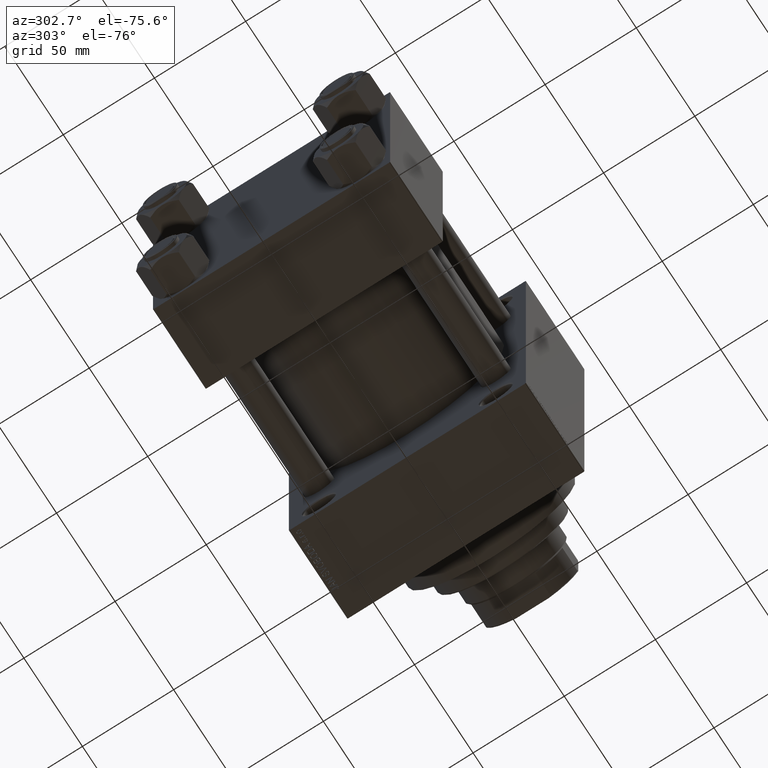
[diagram: clean part render]
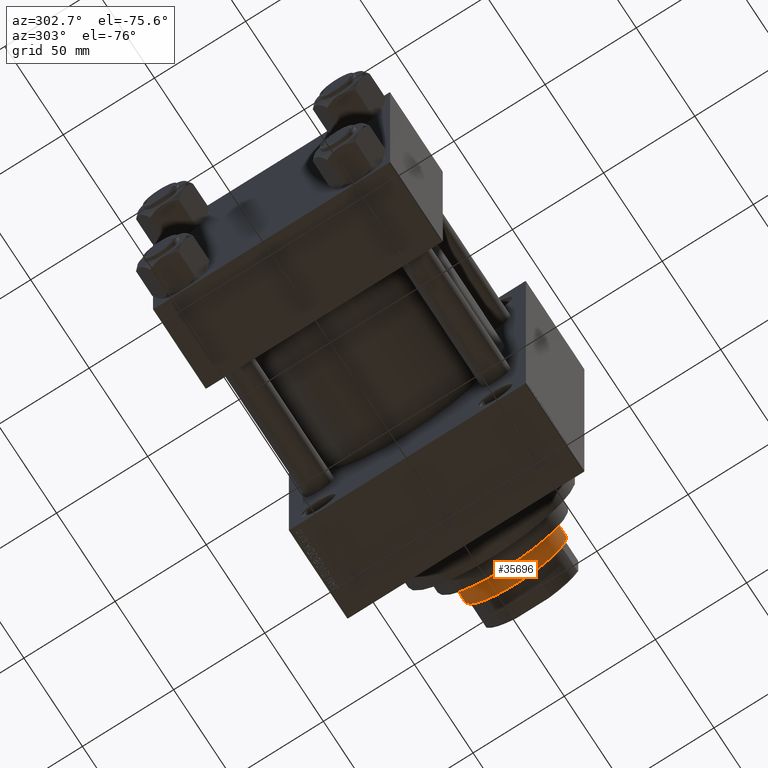
[diagram: same view with one face highlighted and labeled with its STEP entity id]
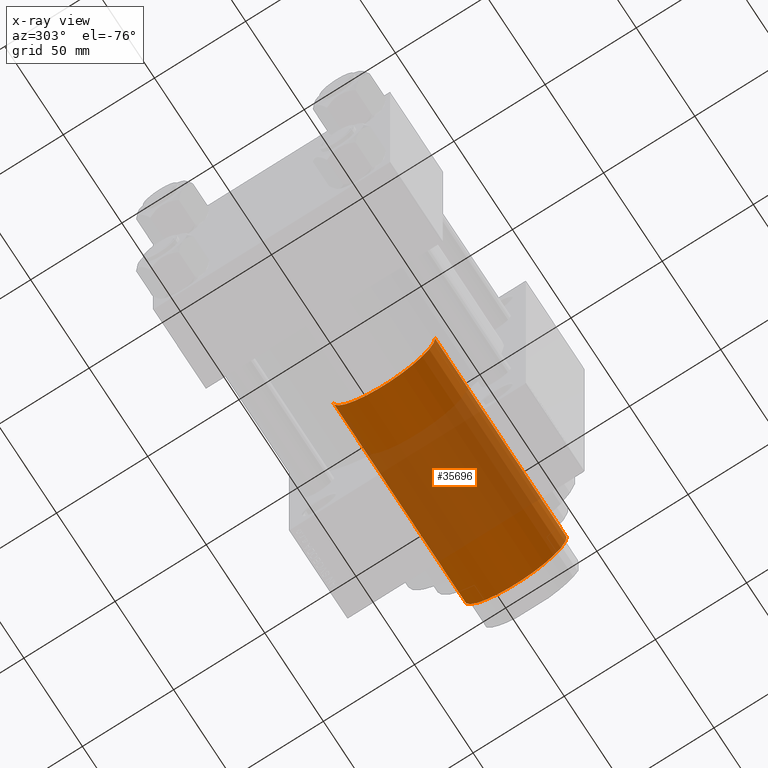
[diagram: x-ray of the same camera — body ghosted, the highlighted face saturated]
A machine part, auxiliary view. The second image highlights one B-rep face of the part: STEP entity #35696.
The next image is the same camera in x-ray: the body ghosted, the highlighted face saturated — about 53% of this face is hidden behind the body in this view.
In plain terms, the highlighted cylindrical surface (partial cylindrical patch) has radius 28 mm, axis along (-1, 0, 0).
Its self-contained STEP definition (entity closure, byte-faithful):
#1945 = CARTESIAN_POINT ( 'NONE',  ( 0.000000000000000000, 0.000000000000000000, 164.0000000000000000 ) ) ;
#2196 = DIRECTION ( 'NONE',  ( 1.000000000000000000, 0.000000000000000000, 0.000000000000000000 ) ) ;
#2651 = CIRCLE ( 'NONE', #27765, 28.00000000000000000 ) ;
#3498 = ORIENTED_EDGE ( 'NONE', *, *, #42327, .T. ) ;
#4380 = VERTEX_POINT ( 'NONE', #28106 ) ;
#5342 = DIRECTION ( 'NONE',  ( -0.000000000000000000, -0.000000000000000000, -1.000000000000000000 ) ) ;
#6976 = EDGE_CURVE ( 'NONE', #37524, #22526, #2651, .T. ) ;
#7127 = VECTOR ( 'NONE', #5342, 1000.000000000000000 ) ;
#7977 = CIRCLE ( 'NONE', #36302, 28.00000000000000000 ) ;
#10664 = CARTESIAN_POINT ( 'NONE',  ( 28.00000000000000000, 3.429011037612589276E-15, 164.0000000000000000 ) ) ;
#13102 = DIRECTION ( 'NONE',  ( -1.000000000000000000, 0.000000000000000000, 0.000000000000000000 ) ) ;
#19963 = VECTOR ( 'NONE', #41561, 1000.000000000000000 ) ;
#20448 = ORIENTED_EDGE ( 'NONE', *, *, #6976, .T. ) ;
#20797 = CARTESIAN_POINT ( 'NONE',  ( -28.00000000000000000, 0.000000000000000000, 164.0000000000000000 ) ) ;
#21074 = LINE ( 'NONE', #10664, #19963 ) ;
#21287 = LINE ( 'NONE', #20797, #7127 ) ;
#21436 = CARTESIAN_POINT ( 'NONE',  ( 0.000000000000000000, 0.000000000000000000, 163.5000000000000000 ) ) ;
#22526 = VERTEX_POINT ( 'NONE', #26709 ) ;
#26709 = CARTESIAN_POINT ( 'NONE',  ( -28.00000000000000000, 0.000000000000000000, 51.00000000000000000 ) ) ;
#27765 = AXIS2_PLACEMENT_3D ( 'NONE', #48469, #31373, #46800 ) ;
#28106 = CARTESIAN_POINT ( 'NONE',  ( -28.00000000000000000, 0.000000000000000000, 163.5000000000000000 ) ) ;
#31166 = CARTESIAN_POINT ( 'NONE',  ( 28.00000000000000000, 3.429011037612589276E-15, 51.00000000000000000 ) ) ;
#31373 = DIRECTION ( 'NONE',  ( 0.000000000000000000, 0.000000000000000000, 1.000000000000000000 ) ) ;
#35663 = CARTESIAN_POINT ( 'NONE',  ( 28.00000000000000000, 3.429011037612589276E-15, 163.5000000000000000 ) ) ;
#35666 = DIRECTION ( 'NONE',  ( -0.000000000000000000, -0.000000000000000000, -1.000000000000000000 ) ) ;
#35696 = ADVANCED_FACE ( 'NONE', ( #47538 ), #39946, .T. ) ;
#36302 = AXIS2_PLACEMENT_3D ( 'NONE', #21436, #36898, #2196 ) ;
#36610 = EDGE_CURVE ( 'NONE', #42235, #37524, #21074, .T. ) ;
#36898 = DIRECTION ( 'NONE',  ( 0.000000000000000000, 0.000000000000000000, -1.000000000000000000 ) ) ;
#37184 = EDGE_LOOP ( 'NONE', ( #3498, #38089, #20448, #44094 ) ) ;
#37524 = VERTEX_POINT ( 'NONE', #31166 ) ;
#38089 = ORIENTED_EDGE ( 'NONE', *, *, #36610, .T. ) ;
#39946 = CYLINDRICAL_SURFACE ( 'NONE', #48996, 28.00000000000000000 ) ;
#41561 = DIRECTION ( 'NONE',  ( -0.000000000000000000, -0.000000000000000000, -1.000000000000000000 ) ) ;
#42235 = VERTEX_POINT ( 'NONE', #35663 ) ;
#42327 = EDGE_CURVE ( 'NONE', #4380, #42235, #7977, .T. ) ;
#43847 = EDGE_CURVE ( 'NONE', #4380, #22526, #21287, .T. ) ;
#44094 = ORIENTED_EDGE ( 'NONE', *, *, #43847, .F. ) ;
#46800 = DIRECTION ( 'NONE',  ( 1.000000000000000000, 0.000000000000000000, 0.000000000000000000 ) ) ;
#47538 = FACE_OUTER_BOUND ( 'NONE', #37184, .T. ) ;
#48469 = CARTESIAN_POINT ( 'NONE',  ( 0.000000000000000000, 0.000000000000000000, 51.00000000000000000 ) ) ;
#48996 = AXIS2_PLACEMENT_3D ( 'NONE', #1945, #35666, #13102 ) ;